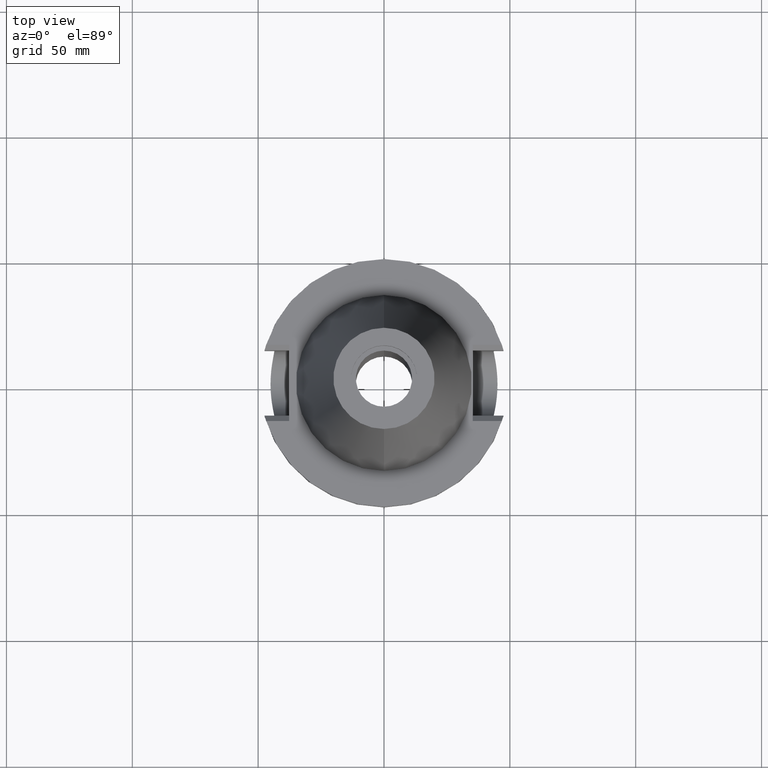
[diagram: clean part render]
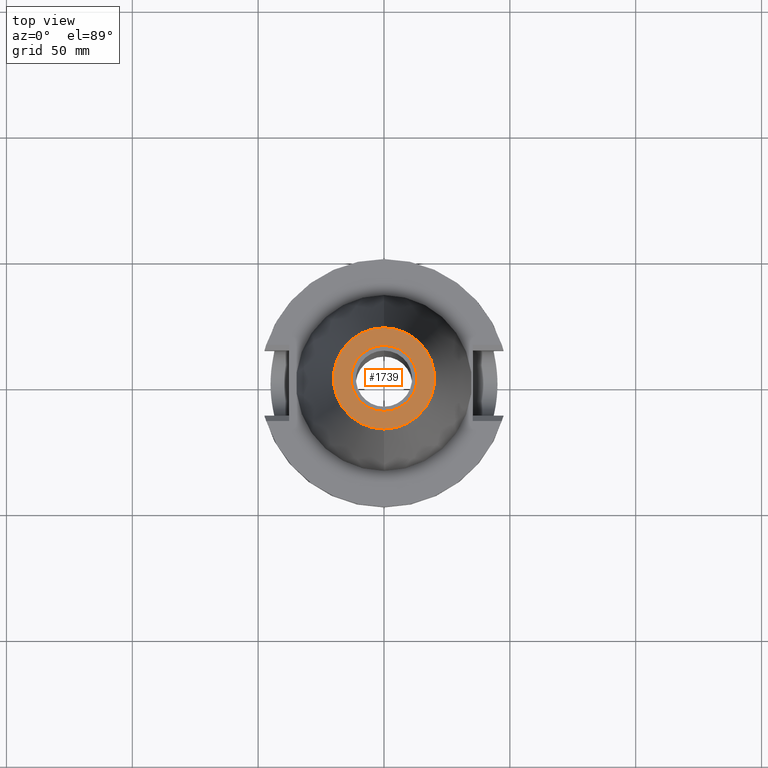
[diagram: same view with one face highlighted and labeled with its STEP entity id]
A machine part, top view. The second image highlights one B-rep face of the part: STEP entity #1739.
In plain terms, the highlighted planar face has unit normal (0, 0, -1).
Its self-contained STEP definition (entity closure, byte-faithful):
#17=CARTESIAN_POINT('',(0.E0,1.846767373114E-14,1.016E2));
#18=DIRECTION('',(0.E0,0.E0,-1.E0));
#19=DIRECTION('',(0.E0,-1.E0,0.E0));
#20=AXIS2_PLACEMENT_3D('',#17,#18,#19);
#26=CARTESIAN_POINT('',(0.E0,1.846767373114E-14,1.016E2));
#27=DIRECTION('',(0.E0,0.E0,-1.E0));
#28=DIRECTION('',(0.E0,1.E0,0.E0));
#29=AXIS2_PLACEMENT_3D('',#26,#27,#28);
#34=CARTESIAN_POINT('',(0.E0,2.625887666732E-14,1.016E2));
#35=DIRECTION('',(0.E0,0.E0,1.E0));
#36=DIRECTION('',(0.E0,-1.E0,0.E0));
#37=AXIS2_PLACEMENT_3D('',#34,#35,#36);
#42=CARTESIAN_POINT('',(0.E0,2.625887666732E-14,1.016E2));
#43=DIRECTION('',(0.E0,0.E0,1.E0));
#44=DIRECTION('',(0.E0,1.E0,0.E0));
#45=AXIS2_PLACEMENT_3D('',#42,#43,#44);
#1488=CARTESIAN_POINT('',(0.E0,-2.010832422388E1,1.016E2));
#1489=CARTESIAN_POINT('',(0.E0,2.010832422388E1,1.016E2));
#1490=VERTEX_POINT('',#1488);
#1491=VERTEX_POINT('',#1489);
#1492=CARTESIAN_POINT('',(0.E0,-1.3115E1,1.016E2));
#1493=CARTESIAN_POINT('',(0.E0,1.3115E1,1.016E2));
#1494=VERTEX_POINT('',#1492);
#1495=VERTEX_POINT('',#1493);
#1722=CARTESIAN_POINT('',(0.E0,2.468887947081E-14,1.016E2));
#1723=DIRECTION('',(0.E0,0.E0,-1.E0));
#1724=DIRECTION('',(0.E0,-1.E0,0.E0));
#1725=AXIS2_PLACEMENT_3D('',#1722,#1723,#1724);
#1726=PLANE('',#1725);
#1728=ORIENTED_EDGE('',*,*,#1727,.T.);
#1730=ORIENTED_EDGE('',*,*,#1729,.T.);
#1731=EDGE_LOOP('',(#1728,#1730));
#1732=FACE_OUTER_BOUND('',#1731,.F.);
#1734=ORIENTED_EDGE('',*,*,#1733,.T.);
#1736=ORIENTED_EDGE('',*,*,#1735,.T.);
#1737=EDGE_LOOP('',(#1734,#1736));
#1738=FACE_BOUND('',#1737,.F.);
#21=CIRCLE('',#20,2.010832422388E1);
#30=CIRCLE('',#29,2.010832422388E1);
#38=CIRCLE('',#37,1.3115E1);
#46=CIRCLE('',#45,1.3115E1);
#1727=EDGE_CURVE('',#1490,#1491,#21,.T.);
#1729=EDGE_CURVE('',#1491,#1490,#30,.T.);
#1733=EDGE_CURVE('',#1494,#1495,#38,.T.);
#1735=EDGE_CURVE('',#1495,#1494,#46,.T.);
#1739=ADVANCED_FACE('',(#1732,#1738),#1726,.F.);